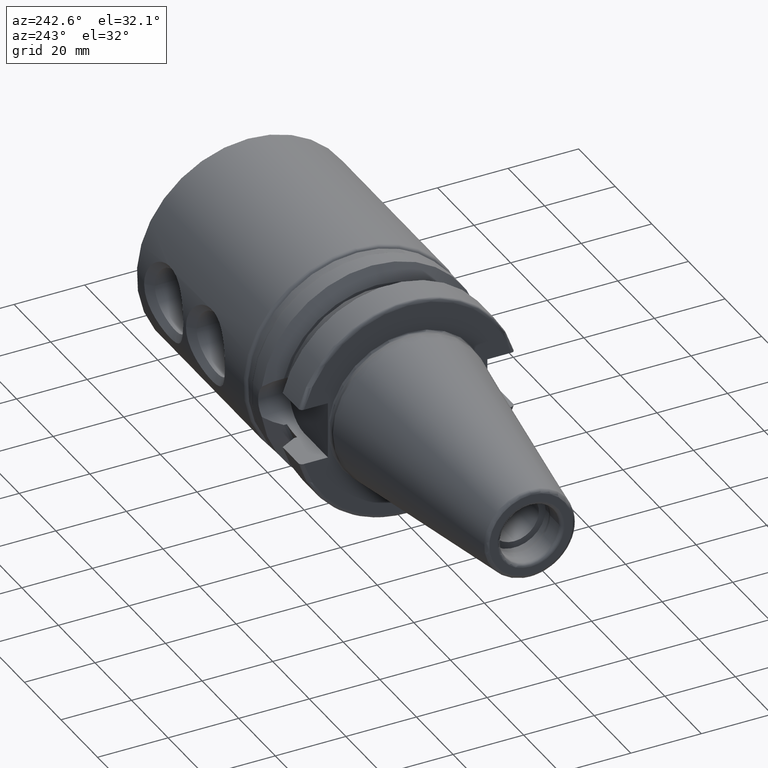
[diagram: clean part render]
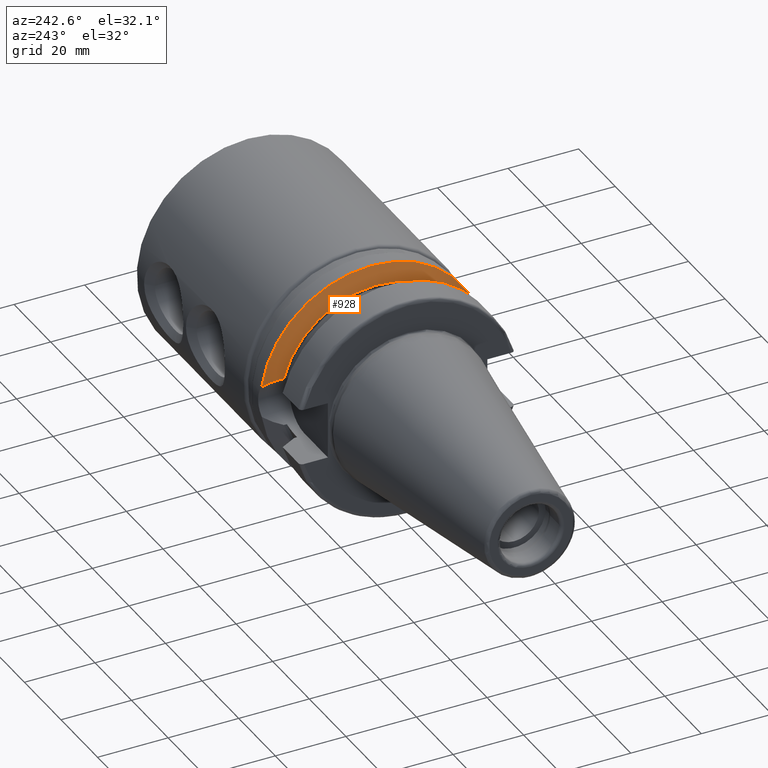
[diagram: same view with one face highlighted and labeled with its STEP entity id]
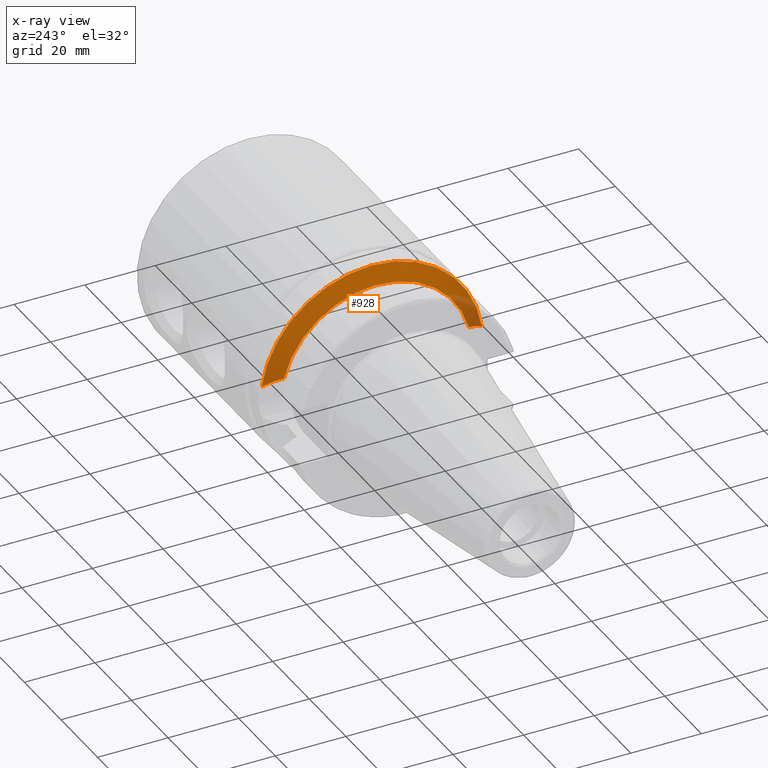
[diagram: x-ray of the same camera — body ghosted, the highlighted face saturated]
A machine part, auxiliary view. The second image highlights one B-rep face of the part: STEP entity #928.
The next image is the same camera in x-ray: the body ghosted, the highlighted face saturated — about 10% of this face is hidden behind the body in this view.
In plain terms, the highlighted conical surface has half-angle 60.125 deg.
Its self-contained STEP definition (entity closure, byte-faithful):
#25=CONICAL_SURFACE('',#1043,29.2970358274569,1.0493792127616);
#43=B_SPLINE_CURVE_WITH_KNOTS('',3,(#1956,#1957,#1958,#1959,#1960,#1961),
 .UNSPECIFIED.,.F.,.F.,(4,2,4),(1.46421027899559,1.54570476603972,2.04294020568399),
 .UNSPECIFIED.);
#51=B_SPLINE_CURVE_WITH_KNOTS('',3,(#2095,#2096,#2097,#2098,#2099,#2100),
 .UNSPECIFIED.,.F.,.F.,(4,2,4),(3.12975744792547,3.62699288756974,3.70848737461386),
 .UNSPECIFIED.);
#230=FACE_OUTER_BOUND('',#293,.T.);
#293=EDGE_LOOP('',(#797,#798,#799,#800));
#335=CIRCLE('',#999,31.5);
#354=CIRCLE('',#1044,27.0940716549138);
#402=VERTEX_POINT('',#1567);
#403=VERTEX_POINT('',#1578);
#417=VERTEX_POINT('',#1955);
#446=VERTEX_POINT('',#2093);
#500=EDGE_CURVE('',#402,#403,#335,.T.);
#524=EDGE_CURVE('',#417,#403,#43,.T.);
#565=EDGE_CURVE('',#402,#446,#51,.T.);
#576=EDGE_CURVE('',#446,#417,#354,.T.);
#797=ORIENTED_EDGE('',*,*,#524,.T.);
#798=ORIENTED_EDGE('',*,*,#500,.F.);
#799=ORIENTED_EDGE('',*,*,#565,.T.);
#800=ORIENTED_EDGE('',*,*,#576,.T.);
#928=ADVANCED_FACE('',(#230),#25,.T.);
#999=AXIS2_PLACEMENT_3D('',#1579,#1150,#1151);
#1043=AXIS2_PLACEMENT_3D('',#2132,#1276,#1277);
#1044=AXIS2_PLACEMENT_3D('',#2133,#1278,#1279);
#1150=DIRECTION('center_axis',(1.,0.,0.));
#1151=DIRECTION('ref_axis',(0.,0.,-1.));
#1276=DIRECTION('center_axis',(1.,0.,0.));
#1277=DIRECTION('ref_axis',(0.,1.,0.));
#1278=DIRECTION('center_axis',(1.,0.,0.));
#1279=DIRECTION('ref_axis',(0.,0.,-1.));
#1567=CARTESIAN_POINT('',(21.6309636926618,31.1782420264945,4.4907932637046));
#1578=CARTESIAN_POINT('',(21.6309636926618,-31.1782420264945,4.4907932637046));
#1579=CARTESIAN_POINT('Origin',(21.6309636926618,0.,0.));
#1955=CARTESIAN_POINT('',(19.1,-26.201311395455,6.89782574439221));
#1956=CARTESIAN_POINT('Ctrl Pts',(19.1,-26.201311395455,6.89782574439221));
#1957=CARTESIAN_POINT('Ctrl Pts',(19.2210929544554,-26.4384736933511,6.82497151762395));
#1958=CARTESIAN_POINT('Ctrl Pts',(19.3406963650697,-26.6728819297428,6.74867108656039));
#1959=CARTESIAN_POINT('Ctrl Pts',(20.1784155384866,-28.3157123387484,6.18231368976925));
#1960=CARTESIAN_POINT('Ctrl Pts',(20.9728756148303,-29.8797957262939,5.46983244373115));
#1961=CARTESIAN_POINT('Ctrl Pts',(21.6309636926618,-31.1782420264945,4.4907932637046));
#2093=CARTESIAN_POINT('',(19.1,26.201311395455,6.89782574439221));
#2095=CARTESIAN_POINT('Ctrl Pts',(21.6309636926618,31.1782420264945,4.4907932637046));
#2096=CARTESIAN_POINT('Ctrl Pts',(20.9728756148303,29.8797957262939,5.46983244373114));
#2097=CARTESIAN_POINT('Ctrl Pts',(20.1784155384866,28.3157123387484,6.18231368976924));
#2098=CARTESIAN_POINT('Ctrl Pts',(19.3406963650697,26.6728819297428,6.74867108656039));
#2099=CARTESIAN_POINT('Ctrl Pts',(19.2210929544554,26.438473693351,6.82497151762395));
#2100=CARTESIAN_POINT('Ctrl Pts',(19.1,26.201311395455,6.89782574439221));
#2132=CARTESIAN_POINT('Origin',(20.3654818463309,0.,0.));
#2133=CARTESIAN_POINT('Origin',(19.1,0.,0.));